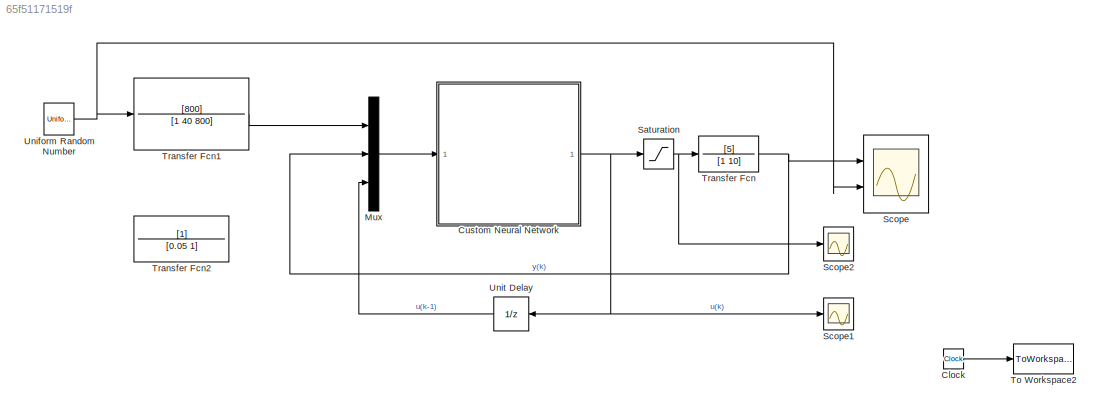
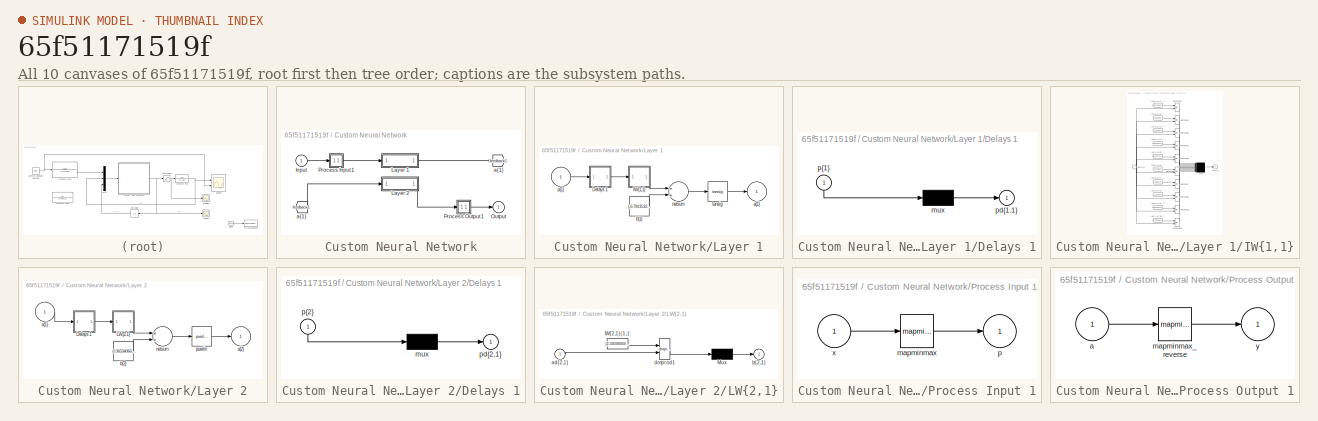
[diagram: thumbnail index - all 10 canvases of the model, root first then tree order]
MODEL slx_65f51171519f
KIND model
CONFIG AbsTol = auto
CONFIG FixedStep = auto
CONFIG MaxStep = auto
CONFIG MinStep = auto
CONFIG RelTol = 1e-3
CONFIG SampleTimeConstraint = Unconstrained
CONFIG Solver = VariableStepAuto
CONFIG SolverMode = Auto
CONFIG SolverName = VariableStepAuto
CONFIG StartTime = 0.0
CONFIG StopTime = 10.0
BLOCK [Clock] Clock
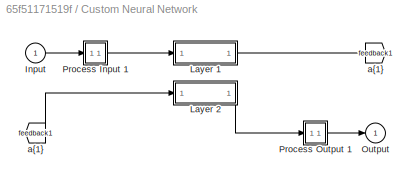
BLOCK [SubSystem] Custom Neural Network
  Ports = [1, 1]
  RequestExecContextInheritance = off
  Variant = off
BLOCK [From] Custom Neural Network/ a{1} 
  GotoTag = feedback1
BLOCK [Inport] Custom Neural Network/Input
  IconDisplay = Port number
  PortDimensions = 3
  SampleTime = 0.01
BLOCK [SubSystem] Custom Neural Network/Layer 1
  Ports = [1, 1]
  RequestExecContextInheritance = off
  Variant = off
BLOCK [SubSystem] Custom Neural Network/Layer 1/Delays 1
  Ports = [1, 1]
  RequestExecContextInheritance = off
  Variant = off
BLOCK [Mux] Custom Neural Network/Layer 1/Delays 1/mux
  Inputs = 1
  Ports = [1, 1]
BLOCK [Outport] Custom Neural Network/Layer 1/Delays 1/pd{1,1}
  IconDisplay = Port number
BLOCK [Inport] Custom Neural Network/Layer 1/Delays 1/p{1}
  IconDisplay = Port number
  PortDimensions = 3
  SampleTime = 0.01
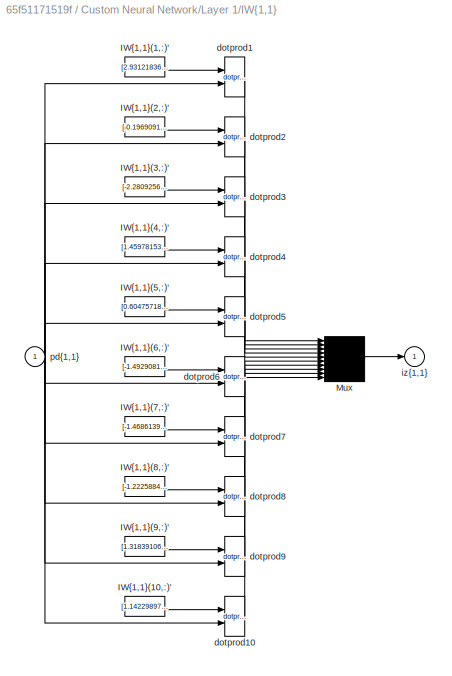
BLOCK [SubSystem] Custom Neural Network/Layer 1/IW{1,1}
  Ports = [1, 1]
  RequestExecContextInheritance = off
  Variant = off
BLOCK [Constant] Custom Neural Network/Layer 1/IW{1,1}/IW{1,1}(1,:)'
  Value = [2.9312183687244997;-2.6523224516003663;0.00016887138870012047]
BLOCK [Constant] Custom Neural Network/Layer 1/IW{1,1}/IW{1,1}(10,:)'
  Value = [1.1422989777888193;1.7281322058882225;-2.0073079651672745]
BLOCK [Constant] Custom Neural Network/Layer 1/IW{1,1}/IW{1,1}(2,:)'
  Value = [-0.19690918930727488;1.1965621524025662;-2.0941956846009111]
BLOCK [Constant] Custom Neural Network/Layer 1/IW{1,1}/IW{1,1}(3,:)'
  Value = [-2.2809256082089187;2.0638335102510661;0.00010241684315486009]
BLOCK [Constant] Custom Neural Network/Layer 1/IW{1,1}/IW{1,1}(4,:)'
  Value = [1.459781531977852;0.41746532694940303;2.3699683866366774]
BLOCK [Constant] Custom Neural Network/Layer 1/IW{1,1}/IW{1,1}(5,:)'
  Value = [0.60475718569245596;2.1560222526817681;1.6814134608677849]
BLOCK [Constant] Custom Neural Network/Layer 1/IW{1,1}/IW{1,1}(6,:)'
  Value = [-1.4929081662989734;-2.1219788609396613;1.8487524179333028]
BLOCK [Constant] Custom Neural Network/Layer 1/IW{1,1}/IW{1,1}(7,:)'
  Value = [-1.4686139931530604;-1.2618973654736712;2.590422913848053]
BLOCK [Constant] Custom Neural Network/Layer 1/IW{1,1}/IW{1,1}(8,:)'
  Value = [-1.2225884385918298;2.0682740886611004;-0.50820142916595679]
BLOCK [Constant] Custom Neural Network/Layer 1/IW{1,1}/IW{1,1}(9,:)'
  Value = [1.3183910656045181;-0.059130748089273232;0.28148329812596873]
BLOCK [Mux] Custom Neural Network/Layer 1/IW{1,1}/Mux
  Inputs = 10
  Ports = [10, 1]
BLOCK [Reference] Custom Neural Network/Layer 1/IW{1,1}/dotprod1  REF=neural/Weight Functions/dotprod
  Ports = [2, 1]
  SourceBlock = neural/Weight Functions/dotprod
  SourceType = DOTPROD
BLOCK [Reference] Custom Neural Network/Layer 1/IW{1,1}/dotprod10  REF=neural/Weight Functions/dotprod
  Ports = [2, 1]
  SourceBlock = neural/Weight Functions/dotprod
  SourceType = DOTPROD
BLOCK [Reference] Custom Neural Network/Layer 1/IW{1,1}/dotprod2  REF=neural/Weight Functions/dotprod
  Ports = [2, 1]
  SourceBlock = neural/Weight Functions/dotprod
  SourceType = DOTPROD
BLOCK [Reference] Custom Neural Network/Layer 1/IW{1,1}/dotprod3  REF=neural/Weight Functions/dotprod
  Ports = [2, 1]
  SourceBlock = neural/Weight Functions/dotprod
  SourceType = DOTPROD
BLOCK [Reference] Custom Neural Network/Layer 1/IW{1,1}/dotprod4  REF=neural/Weight Functions/dotprod
  Ports = [2, 1]
  SourceBlock = neural/Weight Functions/dotprod
  SourceType = DOTPROD
BLOCK [Reference] Custom Neural Network/Layer 1/IW{1,1}/dotprod5  REF=neural/Weight Functions/dotprod
  Ports = [2, 1]
  SourceBlock = neural/Weight Functions/dotprod
  SourceType = DOTPROD
BLOCK [Reference] Custom Neural Network/Layer 1/IW{1,1}/dotprod6  REF=neural/Weight Functions/dotprod
  Ports = [2, 1]
  SourceBlock = neural/Weight Functions/dotprod
  SourceType = DOTPROD
BLOCK [Reference] Custom Neural Network/Layer 1/IW{1,1}/dotprod7  REF=neural/Weight Functions/dotprod
  Ports = [2, 1]
  SourceBlock = neural/Weight Functions/dotprod
  SourceType = DOTPROD
BLOCK [Reference] Custom Neural Network/Layer 1/IW{1,1}/dotprod8  REF=neural/Weight Functions/dotprod
  Ports = [2, 1]
  SourceBlock = neural/Weight Functions/dotprod
  SourceType = DOTPROD
BLOCK [Reference] Custom Neural Network/Layer 1/IW{1,1}/dotprod9  REF=neural/Weight Functions/dotprod
  Ports = [2, 1]
  SourceBlock = neural/Weight Functions/dotprod
  SourceType = DOTPROD
BLOCK [Outport] Custom Neural Network/Layer 1/IW{1,1}/iz{1,1}
  IconDisplay = Port number
BLOCK [Inport] Custom Neural Network/Layer 1/IW{1,1}/pd{1,1}
  IconDisplay = Port number
  PortDimensions = 3
  SampleTime = 0.01
BLOCK [Outport] Custom Neural Network/Layer 1/a{1}
  IconDisplay = Port number
  InitialOutput = [0;0;0;0;0;0;0;0;0;0]
BLOCK [Constant] Custom Neural Network/Layer 1/b{1}
  Value = [-0.79115128125811007;-1.9337945836067258;-0.5473650312659869;-1.6269390435302586;0.048897025808087316;0.0514540105732934;-1.1316769452128337;2.197388334475511;1.9746659341742681;2.8967679492991771]
BLOCK [Sum] Custom Neural Network/Layer 1/netsum
  Inputs = 2
  Ports = [2, 1]
BLOCK [Inport] Custom Neural Network/Layer 1/p{1}
  IconDisplay = Port number
  PortDimensions = 3
  SampleTime = 0.01
BLOCK [Reference] Custom Neural Network/Layer 1/tansig  REF=neural/Transfer Functions/tansig
  Ports = [1, 1]
  SourceBlock = neural/Transfer Functions/tansig
  SourceType = TANSIG
BLOCK [SubSystem] Custom Neural Network/Layer 2
  Ports = [1, 1]
  RequestExecContextInheritance = off
  Variant = off
BLOCK [SubSystem] Custom Neural Network/Layer 2/Delays 1
  Ports = [1, 1]
  RequestExecContextInheritance = off
  Variant = off
BLOCK [Mux] Custom Neural Network/Layer 2/Delays 1/mux
  Inputs = 1
  Ports = [1, 1]
BLOCK [Outport] Custom Neural Network/Layer 2/Delays 1/pd{2,1}
  IconDisplay = Port number
BLOCK [Inport] Custom Neural Network/Layer 2/Delays 1/p{2}
  IconDisplay = Port number
  PortDimensions = 10
  SampleTime = 0.01
BLOCK [SubSystem] Custom Neural Network/Layer 2/LW{2,1}
  Ports = [1, 1]
  RequestExecContextInheritance = off
  Variant = off
BLOCK [Constant] Custom Neural Network/Layer 2/LW{2,1}/IW{2,1}(1,:)'
  Value = [2.3303666965877166;-0.00011010168066328738;-3.8345615339103638;8.2699491761283593e-06;6.7304755977757016e-05;-2.0499242289539555e-05;-0.00017263788153415186;-0.0093235438979685416;0.00053675787748195907;0.00080907691753430661]
BLOCK [Mux] Custom Neural Network/Layer 2/LW{2,1}/Mux
  Inputs = 1
  Ports = [1, 1]
BLOCK [Inport] Custom Neural Network/Layer 2/LW{2,1}/ad{2,1}
  IconDisplay = Port number
  PortDimensions = 10
  SampleTime = 0.01
BLOCK [Reference] Custom Neural Network/Layer 2/LW{2,1}/dotprod1  REF=neural/Weight Functions/dotprod
  Ports = [2, 1]
  SourceBlock = neural/Weight Functions/dotprod
  SourceType = DOTPROD
BLOCK [Outport] Custom Neural Network/Layer 2/LW{2,1}/lz{2,1}
  IconDisplay = Port number
BLOCK [Inport] Custom Neural Network/Layer 2/a{1} 
  IconDisplay = Port number
  PortDimensions = 10
  SampleTime = 0.01
BLOCK [Outport] Custom Neural Network/Layer 2/a{2}
  IconDisplay = Port number
  InitialOutput = 0
BLOCK [Constant] Custom Neural Network/Layer 2/b{2}
  Value = -0.3653406685777541
BLOCK [Sum] Custom Neural Network/Layer 2/netsum
  Inputs = 2
  Ports = [2, 1]
BLOCK [Reference] Custom Neural Network/Layer 2/purelin  REF=neural/Transfer Functions/purelin
  Ports = [1, 1]
  SourceBlock = neural/Transfer Functions/purelin
  SourceType = PURELIN
BLOCK [Outport] Custom Neural Network/Output
  IconDisplay = Port number
  InitialOutput = 0
BLOCK [SubSystem] Custom Neural Network/Process Input 1
  Ports = [1, 1]
  RequestExecContextInheritance = off
  Variant = off
BLOCK [Reference] Custom Neural Network/Process Input 1/mapminmax  REF=neural/Processing Functions/mapminmax
  Ports = [1, 1]
  SourceBlock = neural/Processing Functions/mapminmax
  SourceType = MAPMINMAX Preprocess
BLOCK [Outport] Custom Neural Network/Process Input 1/p
  IconDisplay = Port number
  PortDimensions = 3
  SampleTime = 0.01
BLOCK [Inport] Custom Neural Network/Process Input 1/x
  IconDisplay = Port number
  PortDimensions = 3
  SampleTime = 0.01
BLOCK [SubSystem] Custom Neural Network/Process Output 1
  Ports = [1, 1]
  RequestExecContextInheritance = off
  Variant = off
BLOCK [Inport] Custom Neural Network/Process Output 1/a
  IconDisplay = Port number
  PortDimensions = 1
  SampleTime = 0.01
BLOCK [Reference] Custom Neural Network/Process Output 1/mapminmax_reverse  REF=neural/Processing Functions/mapminmax_reverse
  Ports = [1, 1]
  SourceBlock = neural/Processing Functions/mapminmax_reverse
  SourceType = MAPMINMAX Reverse Process
BLOCK [Outport] Custom Neural Network/Process Output 1/y
  IconDisplay = Port number
  PortDimensions = 1
  SampleTime = 0.01
BLOCK [Goto] Custom Neural Network/a{1}
  GotoTag = feedback1
BLOCK [Mux] Mux
  DisplayOption = bar
  Inputs = 3
  Ports = [3, 1]
BLOCK [Saturate] Saturation
  InputPortMap = u0
  LowerLimit = -10
  Ports = [1, 1]
  UpperLimit = 10
BLOCK [Scope] Scope
  NumInputPorts = 2
  Ports = [2]
  ScopeSpecificationString = Simulink.scopes.TimeScopeBlockCfg('CurrentConfiguration', extmgr.ConfigurationSet(extmgr.Configuration('Core','General UI',true),extmgr.Configuration('Core','Source UI',true),extmgr.Configuration('Sources','WiredSimulink',true),extmgr.Configuration('Visuals','Time Domain',true,'SerializedDisplays',{struct('MinYLimReal','-0.35424','MaxYLimReal','2.66628','YLabelReal','','MinYLimMag','0.00000','MaxY...<+1375ch>
BLOCK [Scope] Scope1
  Ports = [1]
  ScopeSpecificationString = Simulink.scopes.TimeScopeBlockCfg('CurrentConfiguration', extmgr.ConfigurationSet(extmgr.Configuration('Core','General UI',true),extmgr.Configuration('Core','Source UI',true),extmgr.Configuration('Sources','WiredSimulink',true,'DataLoggingVariableName','ScopeData1'),extmgr.Configuration('Visuals','Time Domain',true,'SerializedDisplays',{struct('MinYLimReal','-3.83642','MaxYLimReal','6.9919','YLabe...<+1386ch>
BLOCK [Scope] Scope2
  Ports = [1]
  ScopeSpecificationString = Simulink.scopes.TimeScopeBlockCfg('CurrentConfiguration', extmgr.ConfigurationSet(extmgr.Configuration('Core','General UI',true),extmgr.Configuration('Core','Source UI',true),extmgr.Configuration('Sources','WiredSimulink',true,'DataLoggingVariableName','ScopeData1'),extmgr.Configuration('Visuals','Time Domain',true,'SerializedDisplays',{struct('MinYLimReal','-3.83642','MaxYLimReal','6.9919','YLabe...<+1392ch>
BLOCK [ToWorkspace] To Workspace2
  FixptAsFi = on
  MaxDataPoints = inf
  Ports = [1]
  SampleTime = 0.01
  Save2DSignal = 3-D array (concatenate along third dimension)
  VariableName = Tiempo
BLOCK [TransferFcn] Transfer Fcn
  Denominator = [1 10]
  Numerator = [5]
BLOCK [TransferFcn] Transfer Fcn1
  Denominator = [1 40 800]
  Numerator = [800]
BLOCK [TransferFcn] Transfer Fcn2
  Denominator = [0.05 1]
BLOCK [UniformRandomNumber] Uniform Random Number
  Maximum = 2.5
  Minimum = 0
  SampleTime = 0.5
BLOCK [UnitDelay] Unit Delay
  InputProcessing = Elements as channels (sample based)
  SampleTime = 0.01
LINE Clock:1 -> To Workspace2:1
LINE Custom Neural Network/ a{1} :1 -> Custom Neural Network/Layer 2:1
LINE Custom Neural Network/Input:1 -> Custom Neural Network/Process Input 1:1
LINE Custom Neural Network/Layer 1/Delays 1/mux:1 -> Custom Neural Network/Layer 1/Delays 1/pd{1,1}:1
LINE Custom Neural Network/Layer 1/Delays 1/p{1}:1 -> Custom Neural Network/Layer 1/Delays 1/mux:1
LINE Custom Neural Network/Layer 1/Delays 1:1 -> Custom Neural Network/Layer 1/IW{1,1}:1
LINE Custom Neural Network/Layer 1/IW{1,1}/IW{1,1}(1,:)':1 -> Custom Neural Network/Layer 1/IW{1,1}/dotprod1:1
LINE Custom Neural Network/Layer 1/IW{1,1}/IW{1,1}(10,:)':1 -> Custom Neural Network/Layer 1/IW{1,1}/dotprod10:1
LINE Custom Neural Network/Layer 1/IW{1,1}/IW{1,1}(2,:)':1 -> Custom Neural Network/Layer 1/IW{1,1}/dotprod2:1
LINE Custom Neural Network/Layer 1/IW{1,1}/IW{1,1}(3,:)':1 -> Custom Neural Network/Layer 1/IW{1,1}/dotprod3:1
LINE Custom Neural Network/Layer 1/IW{1,1}/IW{1,1}(4,:)':1 -> Custom Neural Network/Layer 1/IW{1,1}/dotprod4:1
LINE Custom Neural Network/Layer 1/IW{1,1}/IW{1,1}(5,:)':1 -> Custom Neural Network/Layer 1/IW{1,1}/dotprod5:1
LINE Custom Neural Network/Layer 1/IW{1,1}/IW{1,1}(6,:)':1 -> Custom Neural Network/Layer 1/IW{1,1}/dotprod6:1
LINE Custom Neural Network/Layer 1/IW{1,1}/IW{1,1}(7,:)':1 -> Custom Neural Network/Layer 1/IW{1,1}/dotprod7:1
LINE Custom Neural Network/Layer 1/IW{1,1}/IW{1,1}(8,:)':1 -> Custom Neural Network/Layer 1/IW{1,1}/dotprod8:1
LINE Custom Neural Network/Layer 1/IW{1,1}/IW{1,1}(9,:)':1 -> Custom Neural Network/Layer 1/IW{1,1}/dotprod9:1
LINE Custom Neural Network/Layer 1/IW{1,1}/Mux:1 -> Custom Neural Network/Layer 1/IW{1,1}/iz{1,1}:1
LINE Custom Neural Network/Layer 1/IW{1,1}/dotprod10:1 -> Custom Neural Network/Layer 1/IW{1,1}/Mux:10
LINE Custom Neural Network/Layer 1/IW{1,1}/dotprod1:1 -> Custom Neural Network/Layer 1/IW{1,1}/Mux:1
LINE Custom Neural Network/Layer 1/IW{1,1}/dotprod2:1 -> Custom Neural Network/Layer 1/IW{1,1}/Mux:2
LINE Custom Neural Network/Layer 1/IW{1,1}/dotprod3:1 -> Custom Neural Network/Layer 1/IW{1,1}/Mux:3
LINE Custom Neural Network/Layer 1/IW{1,1}/dotprod4:1 -> Custom Neural Network/Layer 1/IW{1,1}/Mux:4
LINE Custom Neural Network/Layer 1/IW{1,1}/dotprod5:1 -> Custom Neural Network/Layer 1/IW{1,1}/Mux:5
LINE Custom Neural Network/Layer 1/IW{1,1}/dotprod6:1 -> Custom Neural Network/Layer 1/IW{1,1}/Mux:6
LINE Custom Neural Network/Layer 1/IW{1,1}/dotprod7:1 -> Custom Neural Network/Layer 1/IW{1,1}/Mux:7
LINE Custom Neural Network/Layer 1/IW{1,1}/dotprod8:1 -> Custom Neural Network/Layer 1/IW{1,1}/Mux:8
LINE Custom Neural Network/Layer 1/IW{1,1}/dotprod9:1 -> Custom Neural Network/Layer 1/IW{1,1}/Mux:9
NET Custom Neural Network/Layer 1/IW{1,1}/pd{1,1}:1 -> Custom Neural Network/Layer 1/IW{1,1}/dotprod10:2, Custom Neural Network/Layer 1/IW{1,1}/dotprod1:2, Custom Neural Network/Layer 1/IW{1,1}/dotprod2:2, Custom Neural Network/Layer 1/IW{1,1}/dotprod3:2, Custom Neural Network/Layer 1/IW{1,1}/dotprod4:2, Custom Neural Network/Layer 1/IW{1,1}/dotprod5:2, Custom Neural Network/Layer 1/IW{1,1}/dotprod6:2, Custom Neural Network/Layer 1/IW{1,1}/dotprod7:2, Custom Neural Network/Layer 1/IW{1,1}/dotprod8:2, Custom Neural Network/Layer 1/IW{1,1}/dotprod9:2
LINE Custom Neural Network/Layer 1/IW{1,1}:1 -> Custom Neural Network/Layer 1/netsum:1
LINE Custom Neural Network/Layer 1/b{1}:1 -> Custom Neural Network/Layer 1/netsum:2
LINE Custom Neural Network/Layer 1/netsum:1 -> Custom Neural Network/Layer 1/tansig:1
LINE Custom Neural Network/Layer 1/p{1}:1 -> Custom Neural Network/Layer 1/Delays 1:1
LINE Custom Neural Network/Layer 1/tansig:1 -> Custom Neural Network/Layer 1/a{1}:1
LINE Custom Neural Network/Layer 1:1 -> Custom Neural Network/a{1}:1
LINE Custom Neural Network/Layer 2/Delays 1/mux:1 -> Custom Neural Network/Layer 2/Delays 1/pd{2,1}:1
LINE Custom Neural Network/Layer 2/Delays 1/p{2}:1 -> Custom Neural Network/Layer 2/Delays 1/mux:1
LINE Custom Neural Network/Layer 2/Delays 1:1 -> Custom Neural Network/Layer 2/LW{2,1}:1
LINE Custom Neural Network/Layer 2/LW{2,1}/IW{2,1}(1,:)':1 -> Custom Neural Network/Layer 2/LW{2,1}/dotprod1:1
LINE Custom Neural Network/Layer 2/LW{2,1}/Mux:1 -> Custom Neural Network/Layer 2/LW{2,1}/lz{2,1}:1
LINE Custom Neural Network/Layer 2/LW{2,1}/ad{2,1}:1 -> Custom Neural Network/Layer 2/LW{2,1}/dotprod1:2
LINE Custom Neural Network/Layer 2/LW{2,1}/dotprod1:1 -> Custom Neural Network/Layer 2/LW{2,1}/Mux:1
LINE Custom Neural Network/Layer 2/LW{2,1}:1 -> Custom Neural Network/Layer 2/netsum:1
LINE Custom Neural Network/Layer 2/a{1} :1 -> Custom Neural Network/Layer 2/Delays 1:1
LINE Custom Neural Network/Layer 2/b{2}:1 -> Custom Neural Network/Layer 2/netsum:2
LINE Custom Neural Network/Layer 2/netsum:1 -> Custom Neural Network/Layer 2/purelin:1
LINE Custom Neural Network/Layer 2/purelin:1 -> Custom Neural Network/Layer 2/a{2}:1
LINE Custom Neural Network/Layer 2:1 -> Custom Neural Network/Process Output 1:1
LINE Custom Neural Network/Process Input 1/mapminmax:1 -> Custom Neural Network/Process Input 1/p:1
LINE Custom Neural Network/Process Input 1/x:1 -> Custom Neural Network/Process Input 1/mapminmax:1
LINE Custom Neural Network/Process Input 1:1 -> Custom Neural Network/Layer 1:1
LINE Custom Neural Network/Process Output 1/a:1 -> Custom Neural Network/Process Output 1/mapminmax_reverse:1
LINE Custom Neural Network/Process Output 1/mapminmax_reverse:1 -> Custom Neural Network/Process Output 1/y:1
LINE Custom Neural Network/Process Output 1:1 -> Custom Neural Network/Output:1
NET Custom Neural Network:1 -> Saturation:1, Scope1:1, Unit Delay:1
LINE Mux:1 -> Custom Neural Network:1
NET Saturation:1 -> Scope2:1, Transfer Fcn:1
LINE Transfer Fcn1:1 -> Mux:1
NET Transfer Fcn:1 -> Mux:2, Scope:1
NET Uniform Random Number:1 -> Scope:2, Transfer Fcn1:1
LINE Unit Delay:1 -> Mux:3
note: NET lines group one-source signal fan-out (src -> all destinations, sorted); 1:1 wires keep LINE
